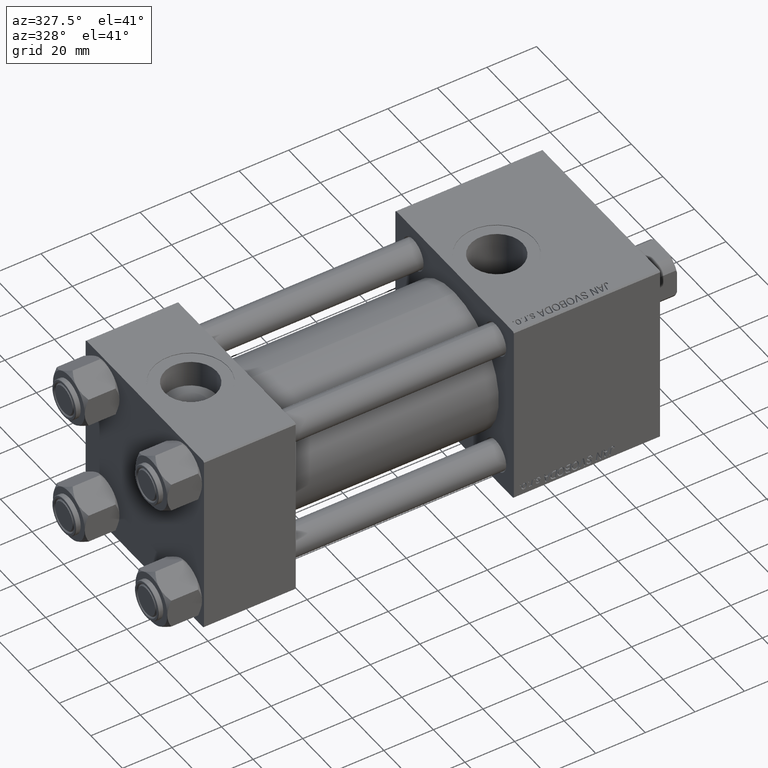
[diagram: clean part render]
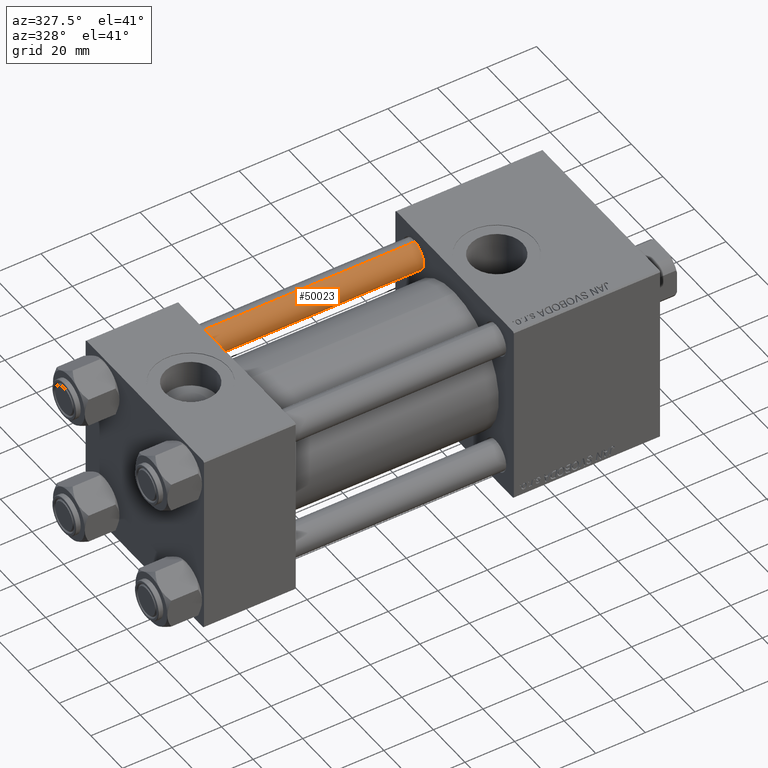
[diagram: same view with one face highlighted and labeled with its STEP entity id]
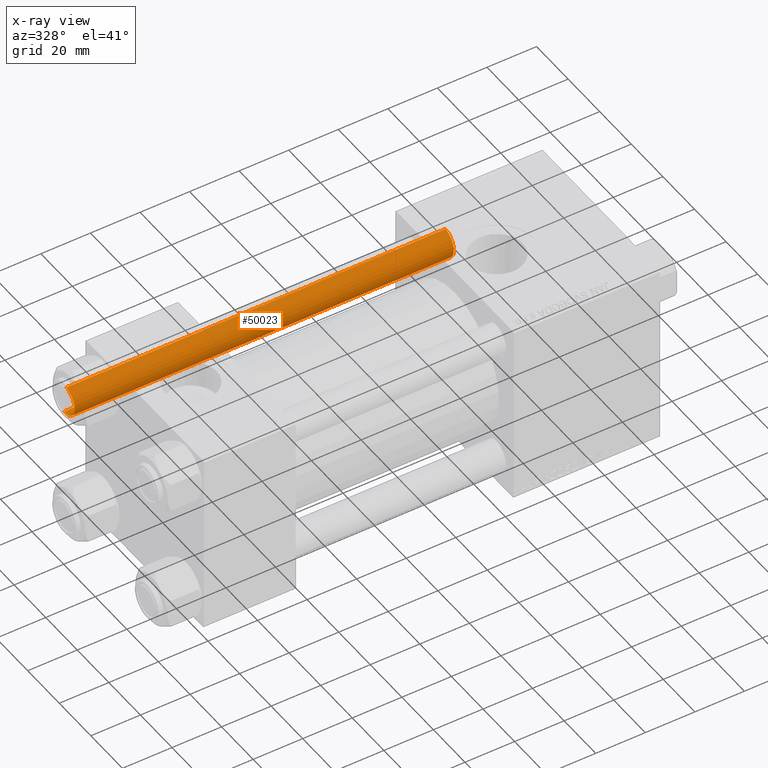
[diagram: x-ray of the same camera — body ghosted, the highlighted face saturated]
A machine part, auxiliary view. The second image highlights one B-rep face of the part: STEP entity #50023.
The next image is the same camera in x-ray: the body ghosted, the highlighted face saturated — about 0% of this face is hidden behind the body in this view.
In plain terms, the highlighted cylindrical surface (edge-blend (fillet) strip) has radius 6 mm, axis along (-1, 0, 0).
Its self-contained STEP definition (entity closure, byte-faithful):
#2256 = ORIENTED_EDGE ( 'NONE', *, *, #42052, .F. ) ;
#3323 = EDGE_LOOP ( 'NONE', ( #2256, #31535, #28774, #32839 ) ) ;
#4035 = DIRECTION ( 'NONE',  ( 1.000000000000000000, 0.000000000000000000, 0.000000000000000000 ) ) ;
#7665 = CARTESIAN_POINT ( 'NONE',  ( 0.000000000000000000, 0.000000000000000000, 0.5000000000000281997 ) ) ;
#7853 = DIRECTION ( 'NONE',  ( 0.000000000000000000, 0.000000000000000000, -1.000000000000000000 ) ) ;
#7884 = AXIS2_PLACEMENT_3D ( 'NONE', #7665, #31122, #22973 ) ;
#8626 = LINE ( 'NONE', #12698, #19350 ) ;
#8701 = EDGE_CURVE ( 'NONE', #14598, #27476, #29065, .T. ) ;
#9509 = AXIS2_PLACEMENT_3D ( 'NONE', #27238, #7853, #4035 ) ;
#11491 = EDGE_CURVE ( 'NONE', #43216, #36628, #19276, .T. ) ;
#11501 = CYLINDRICAL_SURFACE ( 'NONE', #33465, 6.000000000000000888 ) ;
#12698 = CARTESIAN_POINT ( 'NONE',  ( -6.000000000000000888, 0.000000000000000000, 154.0000000000000000 ) ) ;
#14139 = EDGE_CURVE ( 'NONE', #27476, #43216, #8626, .T. ) ;
#14598 = VERTEX_POINT ( 'NONE', #32136 ) ;
#16491 = VECTOR ( 'NONE', #46637, 1000.000000000000000 ) ;
#19108 = CARTESIAN_POINT ( 'NONE',  ( -6.000000000000000888, 0.000000000000000000, 0.5000000000000281997 ) ) ;
#19276 = CIRCLE ( 'NONE', #7884, 6.000000000000000888 ) ;
#19350 = VECTOR ( 'NONE', #24941, 1000.000000000000000 ) ;
#22973 = DIRECTION ( 'NONE',  ( 1.000000000000000000, 0.000000000000000000, 0.000000000000000000 ) ) ;
#23504 = LINE ( 'NONE', #31883, #16491 ) ;
#24941 = DIRECTION ( 'NONE',  ( -0.000000000000000000, -0.000000000000000000, -1.000000000000000000 ) ) ;
#27238 = CARTESIAN_POINT ( 'NONE',  ( 0.000000000000000000, 0.000000000000000000, 153.5000000000000000 ) ) ;
#27476 = VERTEX_POINT ( 'NONE', #28897 ) ;
#28774 = ORIENTED_EDGE ( 'NONE', *, *, #14139, .T. ) ;
#28897 = CARTESIAN_POINT ( 'NONE',  ( -6.000000000000000888, 0.000000000000000000, 153.5000000000000000 ) ) ;
#29065 = CIRCLE ( 'NONE', #9509, 6.000000000000000888 ) ;
#30376 = FACE_OUTER_BOUND ( 'NONE', #3323, .T. ) ;
#31122 = DIRECTION ( 'NONE',  ( -0.000000000000000000, -0.000000000000000000, 1.000000000000000000 ) ) ;
#31535 = ORIENTED_EDGE ( 'NONE', *, *, #8701, .T. ) ;
#31883 = CARTESIAN_POINT ( 'NONE',  ( 6.000000000000000888, 7.347880794884120722E-16, 154.0000000000000000 ) ) ;
#32136 = CARTESIAN_POINT ( 'NONE',  ( 6.000000000000000888, 7.347880794884120722E-16, 153.5000000000000000 ) ) ;
#32839 = ORIENTED_EDGE ( 'NONE', *, *, #11491, .T. ) ;
#33465 = AXIS2_PLACEMENT_3D ( 'NONE', #42060, #34433, #49954 ) ;
#34433 = DIRECTION ( 'NONE',  ( -0.000000000000000000, -0.000000000000000000, -1.000000000000000000 ) ) ;
#36628 = VERTEX_POINT ( 'NONE', #43111 ) ;
#42052 = EDGE_CURVE ( 'NONE', #14598, #36628, #23504, .T. ) ;
#42060 = CARTESIAN_POINT ( 'NONE',  ( 0.000000000000000000, 0.000000000000000000, 154.0000000000000000 ) ) ;
#43111 = CARTESIAN_POINT ( 'NONE',  ( 6.000000000000000888, 7.347880794884120722E-16, 0.5000000000000281997 ) ) ;
#43216 = VERTEX_POINT ( 'NONE', #19108 ) ;
#46637 = DIRECTION ( 'NONE',  ( -0.000000000000000000, -0.000000000000000000, -1.000000000000000000 ) ) ;
#49954 = DIRECTION ( 'NONE',  ( -1.000000000000000000, 0.000000000000000000, 0.000000000000000000 ) ) ;
#50023 = ADVANCED_FACE ( 'NONE', ( #30376 ), #11501, .T. ) ;